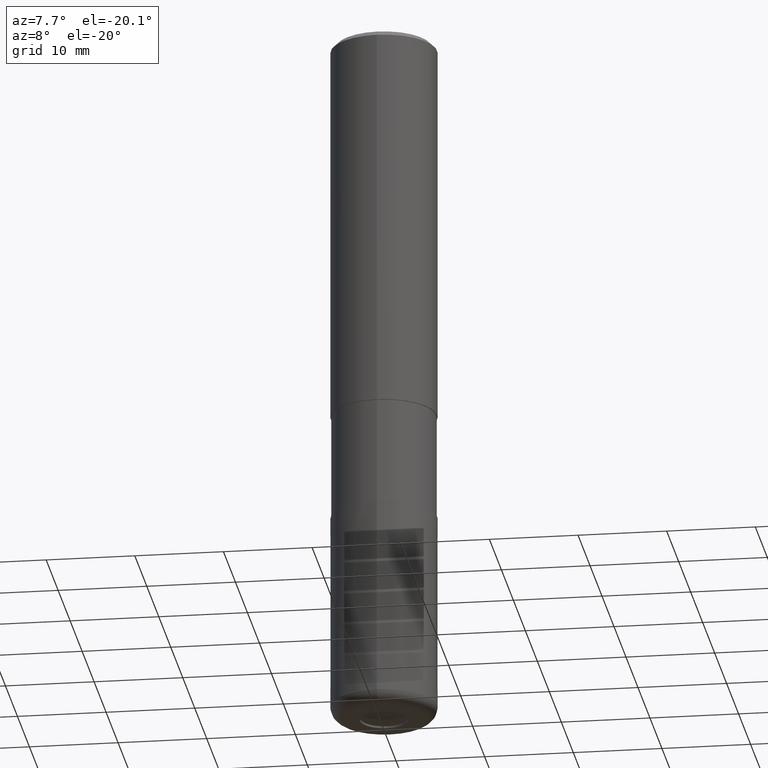
[diagram: clean part render]
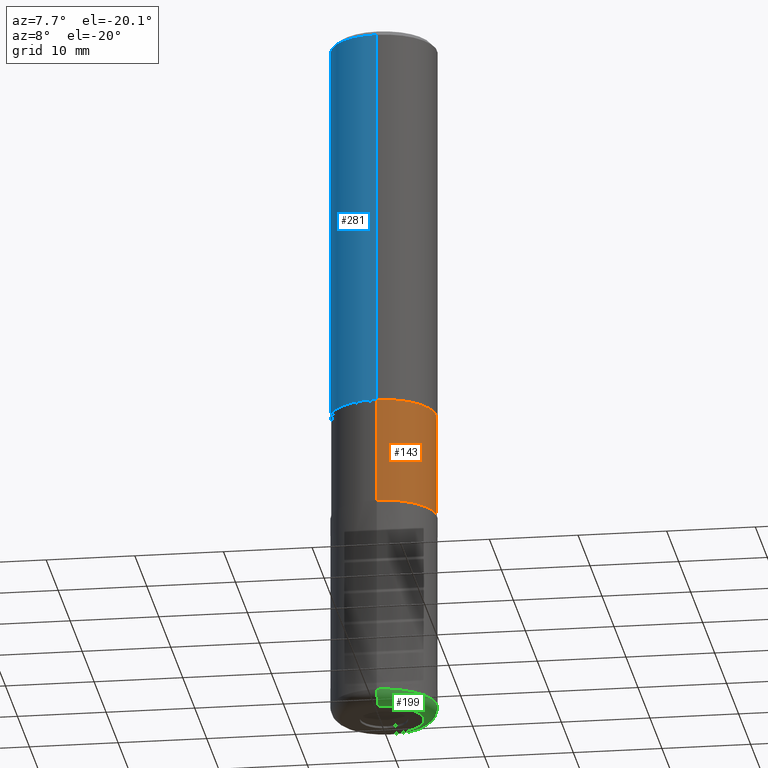
[diagram: same view with three faces highlighted in distinct colors, each labeled with its STEP entity id]
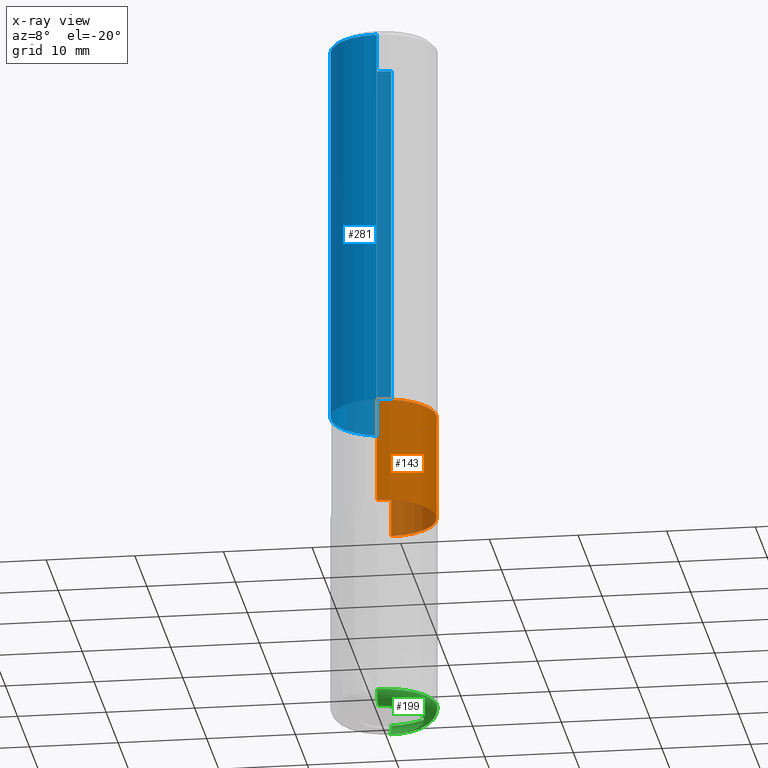
[diagram: x-ray of the same camera — body ghosted, the three highlighted faces saturated]
A machine part, auxiliary view with three faces highlighted in distinct colors.
The next image is the same camera in x-ray (body ghosted, the three faces saturated) — at least one of them is partly hidden behind the body in this view.
Their STEP definitions:

[orange] entity #143 — the highlighted cylindrical surface (partial cylindrical patch) has radius 5.8999 mm, axis along (-0, -0, 1).
#123=VERTEX_POINT('',#311);
#139=VERTEX_POINT('',#329);
#143=ADVANCED_FACE('',(#333),#334,.T.);
#145=EDGE_CURVE('',#147,#139,#336,.T.);
#147=VERTEX_POINT('',#338);
#175=EDGE_CURVE('',#147,#123,#375,.T.);
#195=VERTEX_POINT('',#395);
#227=EDGE_CURVE('',#195,#123,#433,.T.);
#257=EDGE_CURVE('',#139,#195,#463,.T.);
#311=CARTESIAN_POINT('',(7.22511625723433E-016,-5.89995,-44.0));
#329=CARTESIAN_POINT('',(0.0,5.89995,-56.0));
#333=FACE_OUTER_BOUND('',#541,.T.);
#334=CYLINDRICAL_SURFACE('',#542,5.89995);
#336=LINE('',#545,#546);
#338=CARTESIAN_POINT('',(0.0,5.89995,-44.0));
#375=CIRCLE('',#590,5.89995);
#395=CARTESIAN_POINT('',(7.22511625723433E-016,-5.89995,-56.0));
#433=LINE('',#666,#667);
#463=CIRCLE('',#706,5.89995);
#541=EDGE_LOOP('',(#789,#790,#791,#792));
#542=AXIS2_PLACEMENT_3D('',#793,#794,#795);
#545=CARTESIAN_POINT('',(-7.22511625723433E-016,5.89995,-50.0));
#546=VECTOR('',#796,1.0);
#590=AXIS2_PLACEMENT_3D('',#857,#858,#859);
#666=CARTESIAN_POINT('',(7.22511625723433E-016,-5.89995,-50.0));
#667=VECTOR('',#937,1.0);
#706=AXIS2_PLACEMENT_3D('',#951,#952,#953);
#789=ORIENTED_EDGE('',*,*,#145,.F.);
#790=ORIENTED_EDGE('',*,*,#175,.T.);
#791=ORIENTED_EDGE('',*,*,#227,.F.);
#792=ORIENTED_EDGE('',*,*,#257,.F.);
#793=CARTESIAN_POINT('',(0.0,0.0,-50.0));
#794=DIRECTION('',(-0.0,-0.0,1.0));
#795=DIRECTION('',(0.0,1.0,0.0));
#796=DIRECTION('',(0.0,0.0,-1.0));
#857=CARTESIAN_POINT('',(0.0,0.0,-44.0));
#858=DIRECTION('',(0.0,0.0,-1.0));
#859=DIRECTION('',(0.0,1.0,0.0));
#937=DIRECTION('',(-0.0,-0.0,1.0));
#951=CARTESIAN_POINT('',(0.0,0.0,-56.0));
#952=DIRECTION('',(0.0,0.0,-1.0));
#953=DIRECTION('',(0.0,1.0,0.0));

[blue] entity #281 — the highlighted cylindrical surface (partial cylindrical patch) has radius 6 mm, axis along (-0, -0, 1).
#131=EDGE_CURVE('',#271,#241,#320,.T.);
#181=EDGE_CURVE('',#239,#231,#381,.T.);
#231=VERTEX_POINT('',#437);
#235=EDGE_CURVE('',#271,#239,#441,.T.);
#239=VERTEX_POINT('',#445);
#241=VERTEX_POINT('',#447);
#261=EDGE_CURVE('',#231,#241,#467,.T.);
#271=VERTEX_POINT('',#479);
#281=ADVANCED_FACE('',(#491),#492,.T.);
#320=CIRCLE('',#525,6.0);
#381=CIRCLE('',#600,6.0);
#437=CARTESIAN_POINT('',(0.0,6.0,-0.600000000000001));
#441=LINE('',#677,#678);
#445=CARTESIAN_POINT('',(7.34763812293426E-016,-6.0,-0.600000000000001));
#447=CARTESIAN_POINT('',(0.0,6.0,-44.0));
#467=LINE('',#711,#712);
#479=CARTESIAN_POINT('',(7.34763812293426E-016,-6.0,-44.0));
#491=FACE_OUTER_BOUND('',#742,.T.);
#492=CYLINDRICAL_SURFACE('',#743,6.0);
#525=AXIS2_PLACEMENT_3D('',#770,#771,#772);
#600=AXIS2_PLACEMENT_3D('',#864,#865,#866);
#677=CARTESIAN_POINT('',(7.34763812293426E-016,-6.0,-22.3));
#678=VECTOR('',#941,1.0);
#711=CARTESIAN_POINT('',(-7.34763812293426E-016,6.0,-22.3));
#712=VECTOR('',#954,1.0);
#742=EDGE_LOOP('',(#988,#989,#990,#991));
#743=AXIS2_PLACEMENT_3D('',#992,#993,#994);
#770=CARTESIAN_POINT('',(0.0,0.0,-44.0));
#771=DIRECTION('',(0.0,0.0,-1.0));
#772=DIRECTION('',(0.0,1.0,0.0));
#864=CARTESIAN_POINT('',(0.0,0.0,-0.600000000000001));
#865=DIRECTION('',(0.0,0.0,-1.0));
#866=DIRECTION('',(0.0,1.0,0.0));
#941=DIRECTION('',(-0.0,-0.0,1.0));
#954=DIRECTION('',(0.0,0.0,-1.0));
#988=ORIENTED_EDGE('',*,*,#261,.T.);
#989=ORIENTED_EDGE('',*,*,#131,.F.);
#990=ORIENTED_EDGE('',*,*,#235,.T.);
#991=ORIENTED_EDGE('',*,*,#181,.T.);
#992=CARTESIAN_POINT('',(0.0,0.0,-22.3));
#993=DIRECTION('',(-0.0,-0.0,1.0));
#994=DIRECTION('',(0.0,1.0,0.0));

[green] entity #199 — the highlighted toroidal blend (fillet) surface has major radius 4.5 mm and minor (blend) radius 1.5 mm.
#117=EDGE_CURVE('',#151,#259,#304,.T.);
#125=EDGE_CURVE('',#151,#255,#313,.T.);
#151=VERTEX_POINT('',#342);
#159=VERTEX_POINT('',#352);
#171=EDGE_CURVE('',#259,#159,#369,.T.);
#199=ADVANCED_FACE('',(#399),#400,.T.);
#213=EDGE_CURVE('',#159,#255,#417,.T.);
#255=VERTEX_POINT('',#461);
#259=VERTEX_POINT('',#465);
#304=CIRCLE('',#508,1.5);
#313=CIRCLE('',#517,4.5);
#342=CARTESIAN_POINT('',(0.0,4.5,-80.0));
#352=CARTESIAN_POINT('',(7.34763812293426E-016,-6.0,-78.5));
#369=CIRCLE('',#583,6.0);
#399=FACE_OUTER_BOUND('',#622,.T.);
#400=TOROIDAL_SURFACE('',#623,4.5,1.5);
#417=CIRCLE('',#646,1.5);
#461=CARTESIAN_POINT('',(5.5107285922007E-016,-4.5,-80.0));
#465=CARTESIAN_POINT('',(0.0,6.0,-78.5));
#508=AXIS2_PLACEMENT_3D('',#747,#748,#749);
#517=AXIS2_PLACEMENT_3D('',#759,#760,#761);
#583=AXIS2_PLACEMENT_3D('',#846,#847,#848);
#622=EDGE_LOOP('',(#880,#881,#882,#883));
#623=AXIS2_PLACEMENT_3D('',#884,#885,#886);
#646=AXIS2_PLACEMENT_3D('',#914,#915,#916);
#747=CARTESIAN_POINT('',(-5.5107285922007E-016,4.5,-78.5));
#748=DIRECTION('',(1.0,1.22460635382238E-016,0.0));
#749=DIRECTION('',(-1.22460635382238E-016,1.0,0.0));
#759=CARTESIAN_POINT('',(0.0,0.0,-80.0));
#760=DIRECTION('',(0.0,0.0,-1.0));
#761=DIRECTION('',(0.0,1.0,0.0));
#846=CARTESIAN_POINT('',(0.0,0.0,-78.5));
#847=DIRECTION('',(0.0,0.0,-1.0));
#848=DIRECTION('',(0.0,1.0,0.0));
#880=ORIENTED_EDGE('',*,*,#213,.T.);
#881=ORIENTED_EDGE('',*,*,#125,.F.);
#882=ORIENTED_EDGE('',*,*,#117,.T.);
#883=ORIENTED_EDGE('',*,*,#171,.T.);
#884=CARTESIAN_POINT('',(0.0,0.0,-78.5));
#885=DIRECTION('',(0.0,0.0,-1.0));
#886=DIRECTION('',(0.0,-1.0,0.0));
#914=CARTESIAN_POINT('',(5.5107285922007E-016,-4.5,-78.5));
#915=DIRECTION('',(1.0,1.22460635382238E-016,0.0));
#916=DIRECTION('',(1.22460635382238E-016,-1.0,-0.0));